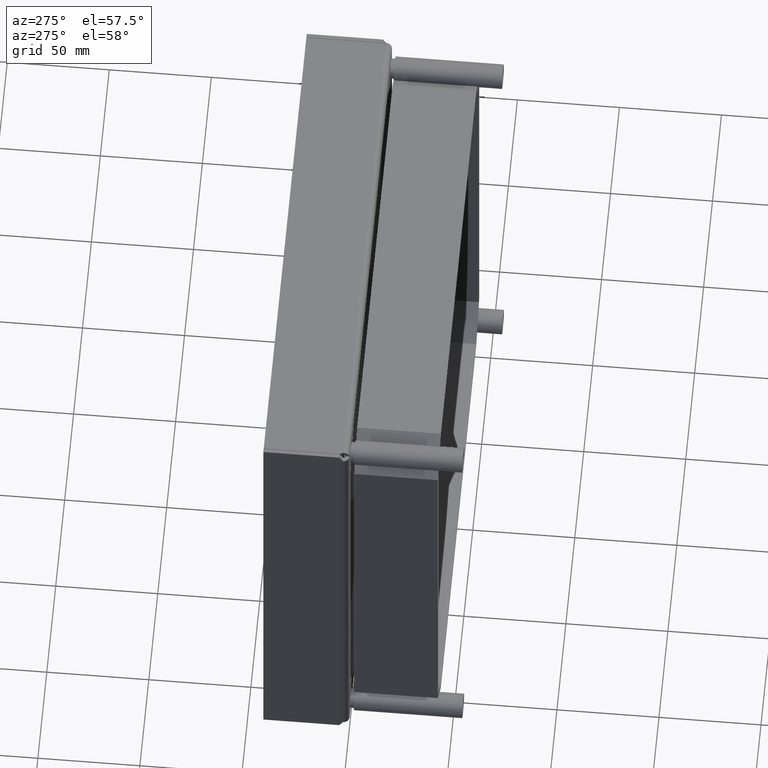
[diagram: clean part render]
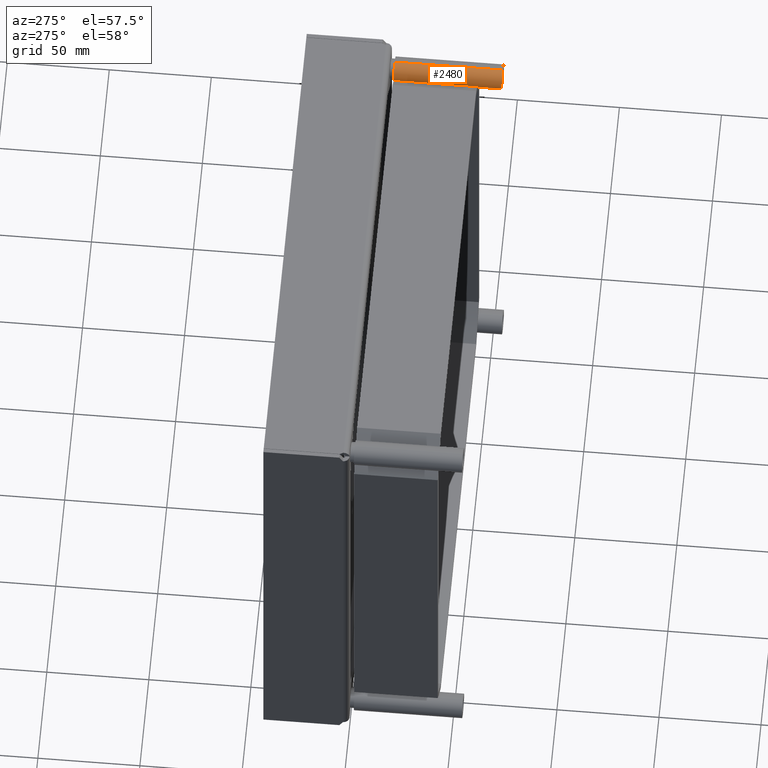
[diagram: same view with one face highlighted and labeled with its STEP entity id]
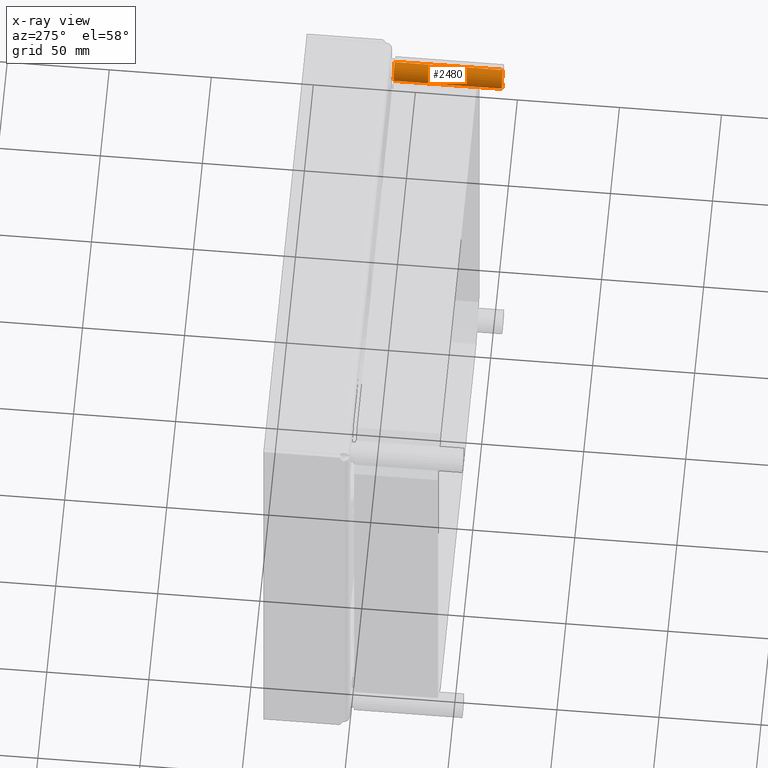
[diagram: x-ray of the same camera — body ghosted, the highlighted face saturated]
A machine part, auxiliary view. The second image highlights one B-rep face of the part: STEP entity #2480.
The next image is the same camera in x-ray: the body ghosted, the highlighted face saturated — about 0% of this face is hidden behind the body in this view.
In plain terms, the highlighted cylindrical surface (edge-blend (fillet) strip) has radius 6 mm, axis along (0, -1, 0).
Its self-contained STEP definition (entity closure, byte-faithful):
#2236=CARTESIAN_POINT('',(0.E0,-4.973799150321E-14,1.065325243143E-14));
#2237=DIRECTION('',(0.E0,-1.E0,0.E0));
#2238=DIRECTION('',(0.E0,0.E0,1.E0));
#2239=AXIS2_PLACEMENT_3D('',#2236,#2237,#2238);
#2252=CARTESIAN_POINT('',(0.E0,5.3E1,0.E0));
#2253=DIRECTION('',(0.E0,-1.E0,0.E0));
#2254=DIRECTION('',(0.E0,0.E0,1.E0));
#2255=AXIS2_PLACEMENT_3D('',#2252,#2253,#2254);
#2260=DIRECTION('',(0.E0,-1.E0,0.E0));
#2261=VECTOR('',#2260,5.3E1);
#2262=CARTESIAN_POINT('',(0.E0,5.3E1,6.E0));
#2263=LINE('',#2262,#2261);
#2275=DIRECTION('',(0.E0,-1.E0,0.E0));
#2276=VECTOR('',#2275,5.3E1);
#2277=CARTESIAN_POINT('',(0.E0,5.3E1,-6.E0));
#2278=LINE('',#2277,#2276);
#2332=CARTESIAN_POINT('',(0.E0,5.3E1,6.E0));
#2333=CARTESIAN_POINT('',(0.E0,0.E0,6.E0));
#2334=VERTEX_POINT('',#2332);
#2335=VERTEX_POINT('',#2333);
#2348=CARTESIAN_POINT('',(0.E0,5.3E1,-6.E0));
#2349=CARTESIAN_POINT('',(0.E0,0.E0,-6.E0));
#2350=VERTEX_POINT('',#2348);
#2351=VERTEX_POINT('',#2349);
#2466=CARTESIAN_POINT('',(0.E0,6.09E1,0.E0));
#2467=DIRECTION('',(0.E0,-1.E0,0.E0));
#2468=DIRECTION('',(0.E0,0.E0,1.E0));
#2469=AXIS2_PLACEMENT_3D('',#2466,#2467,#2468);
#2470=CYLINDRICAL_SURFACE('',#2469,6.E0);
#2472=ORIENTED_EDGE('',*,*,#2471,.T.);
#2473=ORIENTED_EDGE('',*,*,#2455,.T.);
#2475=ORIENTED_EDGE('',*,*,#2474,.F.);
#2477=ORIENTED_EDGE('',*,*,#2476,.F.);
#2478=EDGE_LOOP('',(#2472,#2473,#2475,#2477));
#2479=FACE_OUTER_BOUND('',#2478,.F.);
#2240=CIRCLE('',#2239,6.E0);
#2256=CIRCLE('',#2255,6.E0);
#2455=EDGE_CURVE('',#2335,#2351,#2240,.T.);
#2471=EDGE_CURVE('',#2334,#2335,#2263,.T.);
#2474=EDGE_CURVE('',#2350,#2351,#2278,.T.);
#2476=EDGE_CURVE('',#2334,#2350,#2256,.T.);
#2480=ADVANCED_FACE('',(#2479),#2470,.T.);